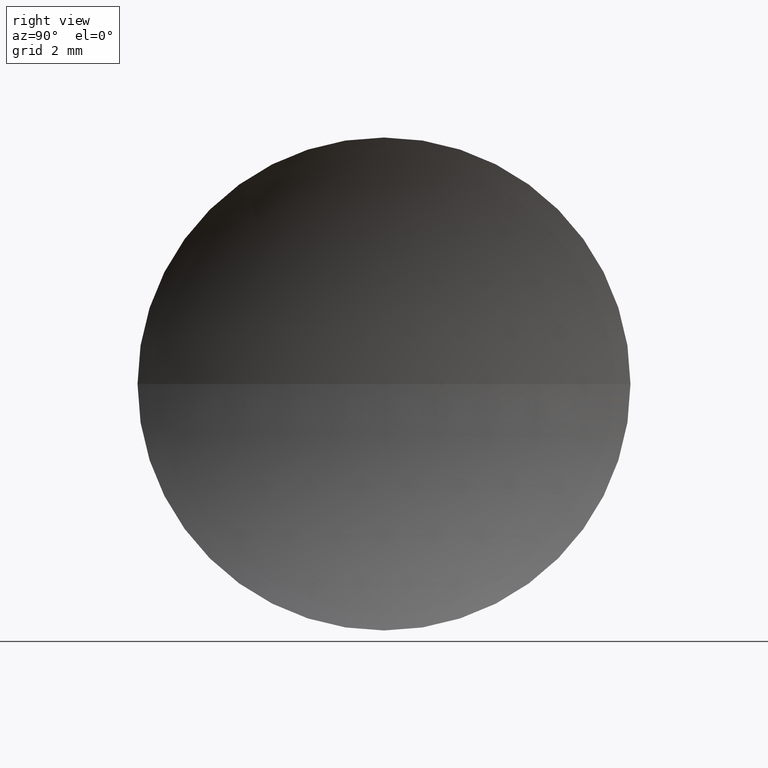
[diagram: clean part render]
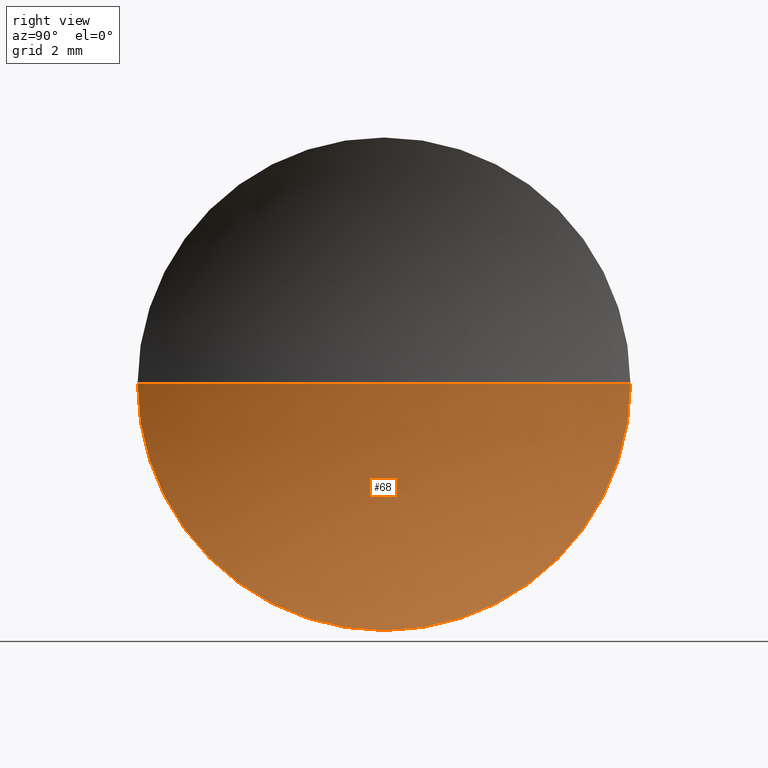
[diagram: same view with one face highlighted and labeled with its STEP entity id]
A machine part, right view. The second image highlights one B-rep face of the part: STEP entity #68.
In plain terms, the highlighted spherical surface has radius 13.4 mm.
Its self-contained STEP definition (entity closure, byte-faithful):
#1 = EDGE_CURVE ( 'NONE', #21, #98, #13, .T. ) ;
#8 = DIRECTION ( 'NONE',  ( -1.000000000000000000, -0.0000000000000000000, -0.0000000000000000000 ) ) ;
#11 = EDGE_CURVE ( 'NONE', #61, #86, #193, .T. ) ;
#13 = CIRCLE ( 'NONE', #140, 6.350000000000012100 ) ;
#21 = VERTEX_POINT ( 'NONE', #57 ) ;
#32 = CARTESIAN_POINT ( 'NONE',  ( 62.69522198417998000, 26.08904114919495900, 0.0000000000000000000 ) ) ;
#33 = DIRECTION ( 'NONE',  ( -1.000000000000000000, 0.0000000000000000000, 0.0000000000000000000 ) ) ;
#46 = SPHERICAL_SURFACE ( 'NONE', #173, 13.40000000000000700 ) ;
#53 = EDGE_CURVE ( 'NONE', #61, #21, #144, .T. ) ;
#57 = CARTESIAN_POINT ( 'NONE',  ( 50.89532791685886800, 26.08904114919495900, -6.350000000000012100 ) ) ;
#58 = CARTESIAN_POINT ( 'NONE',  ( 62.69522198417998000, 26.08904114919495900, 0.0000000000000000000 ) ) ;
#59 = CARTESIAN_POINT ( 'NONE',  ( 50.89532791685886800, 19.73904114919494600, 0.0000000000000000000 ) ) ;
#61 = VERTEX_POINT ( 'NONE', #180 ) ;
#68 = ADVANCED_FACE ( 'NONE', ( #110 ), #46, .F. ) ;
#73 = CIRCLE ( 'NONE', #92, 13.40000000000000900 ) ;
#74 = DIRECTION ( 'NONE',  ( 0.0000000000000000000, 0.0000000000000000000, 1.000000000000000000 ) ) ;
#83 = DIRECTION ( 'NONE',  ( 0.0000000000000000000, 0.0000000000000000000, -1.000000000000000000 ) ) ;
#86 = VERTEX_POINT ( 'NONE', #129 ) ;
#90 = CARTESIAN_POINT ( 'NONE',  ( 50.89532791685886800, 26.08904114919495900, 0.0000000000000000000 ) ) ;
#92 = AXIS2_PLACEMENT_3D ( 'NONE', #32, #83, #33 ) ;
#95 = CARTESIAN_POINT ( 'NONE',  ( 50.89532791685886800, 26.08904114919495900, 0.0000000000000000000 ) ) ;
#98 = VERTEX_POINT ( 'NONE', #59 ) ;
#103 = ORIENTED_EDGE ( 'NONE', *, *, #145, .F. ) ;
#110 = FACE_OUTER_BOUND ( 'NONE', #138, .T. ) ;
#112 = DIRECTION ( 'NONE',  ( 0.0000000000000000000, 0.0000000000000000000, 1.000000000000000000 ) ) ;
#126 = DIRECTION ( 'NONE',  ( 0.0000000000000000000, -1.224646799147353200E-016, 1.000000000000000000 ) ) ;
#129 = CARTESIAN_POINT ( 'NONE',  ( 49.29522198417997500, 26.08904114919495900, 0.0000000000000000000 ) ) ;
#138 = EDGE_LOOP ( 'NONE', ( #158, #196, #103, #142 ) ) ;
#139 = DIRECTION ( 'NONE',  ( -1.000000000000000000, -0.0000000000000000000, -0.0000000000000000000 ) ) ;
#140 = AXIS2_PLACEMENT_3D ( 'NONE', #90, #139, #74 ) ;
#142 = ORIENTED_EDGE ( 'NONE', *, *, #1, .F. ) ;
#143 = CARTESIAN_POINT ( 'NONE',  ( 62.69522198417998000, 26.08904114919495900, 0.0000000000000000000 ) ) ;
#144 = CIRCLE ( 'NONE', #160, 6.350000000000012100 ) ;
#145 = EDGE_CURVE ( 'NONE', #98, #86, #73, .T. ) ;
#158 = ORIENTED_EDGE ( 'NONE', *, *, #53, .F. ) ;
#160 = AXIS2_PLACEMENT_3D ( 'NONE', #95, #8, #181 ) ;
#173 = AXIS2_PLACEMENT_3D ( 'NONE', #58, #112, #222 ) ;
#180 = CARTESIAN_POINT ( 'NONE',  ( 50.89532791685886800, 32.43904114919497800, 7.776507174585709900E-016 ) ) ;
#181 = DIRECTION ( 'NONE',  ( 0.0000000000000000000, 0.0000000000000000000, 1.000000000000000000 ) ) ;
#182 = AXIS2_PLACEMENT_3D ( 'NONE', #143, #126, #201 ) ;
#193 = CIRCLE ( 'NONE', #182, 13.40000000000000700 ) ;
#196 = ORIENTED_EDGE ( 'NONE', *, *, #11, .T. ) ;
#201 = DIRECTION ( 'NONE',  ( 0.0000000000000000000, -1.000000000000000000, -1.224646799147353200E-016 ) ) ;
#222 = DIRECTION ( 'NONE',  ( 0.0000000000000000000, -1.000000000000000000, 0.0000000000000000000 ) ) ;